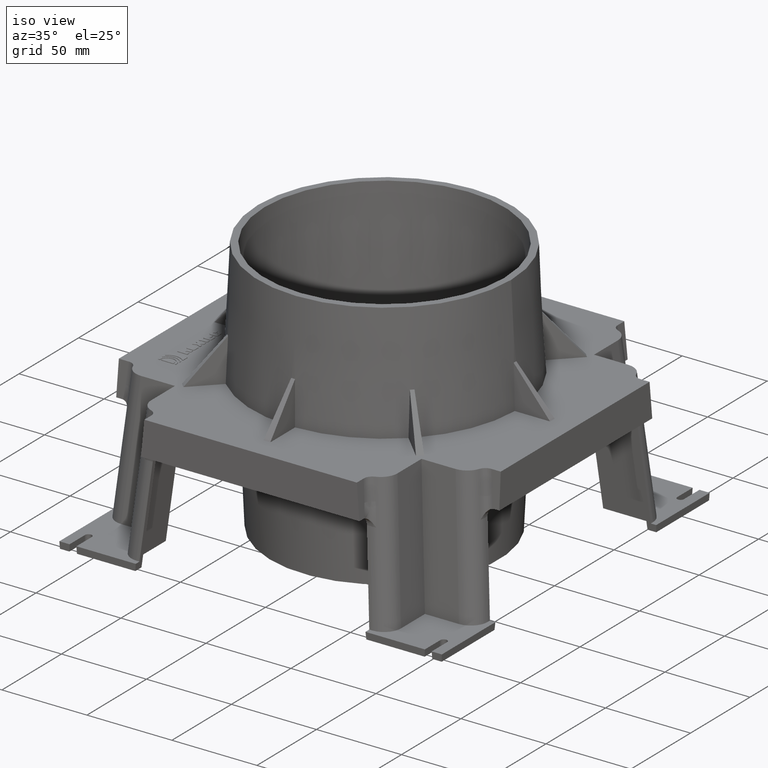
[diagram: clean part render]
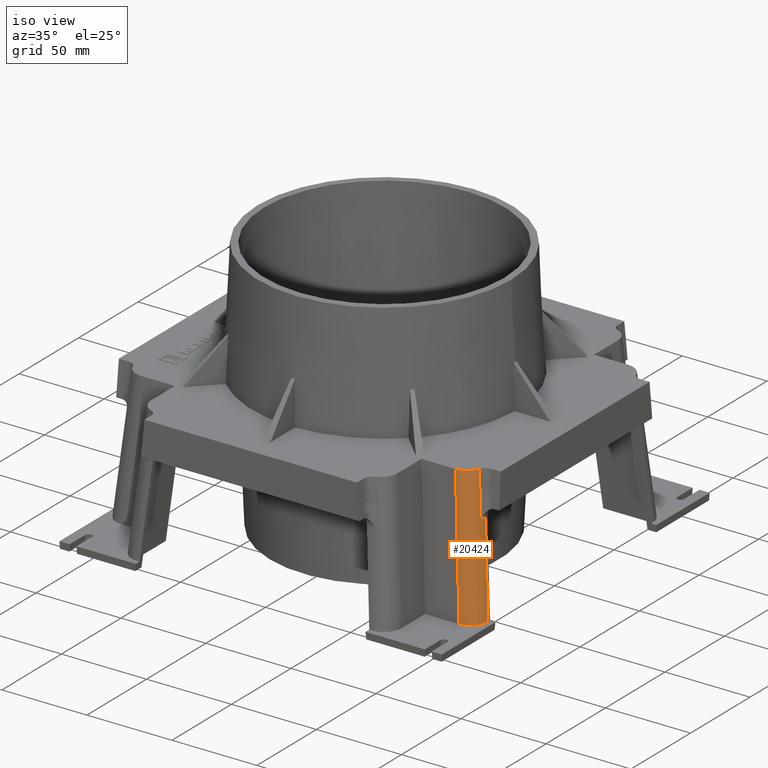
[diagram: same view with one face highlighted and labeled with its STEP entity id]
A machine part, iso view. The second image highlights one B-rep face of the part: STEP entity #20424.
In plain terms, the highlighted cylindrical surface (edge-blend (fillet) strip) has radius 10 mm, axis along (-0.0868, 0.0868, 0.9924).
Its self-contained STEP definition (entity closure, byte-faithful):
#97=CYLINDRICAL_SURFACE('',#21561,10.);
#320=ELLIPSE('',#20508,10.0762519445035,10.);
#363=ELLIPSE('',#20651,10.0762519445035,10.);
#408=ELLIPSE('',#20850,10.1707629905774,10.);
#1525=FACE_OUTER_BOUND('',#2576,.T.);
#2576=EDGE_LOOP('',(#17614,#17615,#17616,#17617,#17618,#17619));
#3406=LINE('',#29017,#5680);
#3412=LINE('',#29041,#5686);
#3423=LINE('',#29108,#5697);
#5680=VECTOR('',#22914,10.);
#5686=VECTOR('',#22934,10.);
#5697=VECTOR('',#22983,10.);
#7539=VERTEX_POINT('',#26341);
#7540=VERTEX_POINT('',#26343);
#8132=VERTEX_POINT('',#28360);
#8133=VERTEX_POINT('',#28362);
#8407=VERTEX_POINT('',#29040);
#8412=VERTEX_POINT('',#29106);
#9405=EDGE_CURVE('',#7540,#7539,#320,.T.);
#10059=EDGE_CURVE('',#8132,#8133,#363,.T.);
#10380=EDGE_CURVE('',#8132,#7540,#3406,.T.);
#10389=EDGE_CURVE('',#8407,#8133,#3412,.T.);
#10408=EDGE_CURVE('',#7539,#8412,#3423,.T.);
#10878=EDGE_CURVE('',#8407,#8412,#408,.T.);
#17614=ORIENTED_EDGE('',*,*,#9405,.T.);
#17615=ORIENTED_EDGE('',*,*,#10408,.T.);
#17616=ORIENTED_EDGE('',*,*,#10878,.F.);
#17617=ORIENTED_EDGE('',*,*,#10389,.T.);
#17618=ORIENTED_EDGE('',*,*,#10059,.F.);
#17619=ORIENTED_EDGE('',*,*,#10380,.T.);
#20424=ADVANCED_FACE('',(#1525),#97,.T.);
#20508=AXIS2_PLACEMENT_3D('',#26344,#21755,#21756);
#20651=AXIS2_PLACEMENT_3D('',#28363,#22490,#22491);
#20850=AXIS2_PLACEMENT_3D('',#30917,#23497,#23498);
#21561=AXIS2_PLACEMENT_3D('',#34225,#26016,#26017);
#21755=DIRECTION('center_axis',(0.,0.,1.));
#21756=DIRECTION('ref_axis',(0.707106781186548,-0.707106781186547,0.));
#22490=DIRECTION('center_axis',(0.,0.,1.));
#22491=DIRECTION('ref_axis',(0.707106781186548,-0.707106781186547,0.));
#22914=DIRECTION('',(0.0868265938642476,-0.0868265938642476,-0.992432509138967));
#22934=DIRECTION('',(-0.0868265938642477,0.0868265938642476,0.992432509138967));
#22983=DIRECTION('',(-0.0868265938642476,0.0868265938642476,0.992432509138967));
#23497=DIRECTION('center_axis',(0.0426844052627551,-0.0426844052627557,
0.998176378750133));
#23498=DIRECTION('ref_axis',(0.705817286234451,-0.705817286234451,-0.0603648648244182));
#26016=DIRECTION('center_axis',(-0.0868265938642476,0.0868265938642476,
0.992432509138967));
#26017=DIRECTION('ref_axis',(0.701755757082145,-0.701755757082143,0.12279134661748));
#26341=CARTESIAN_POINT('',(109.324115755022,-69.3621687741046,-78.));
#26343=CARTESIAN_POINT('',(99.3621687741046,-79.3241157550221,-78.));
#26344=CARTESIAN_POINT('Origin',(99.2859173795886,-69.2859173795886,-78.));
#28360=CARTESIAN_POINT('',(92.5380530190825,-72.5,0.));
#28362=CARTESIAN_POINT('',(101.942201574064,-65.8333333333333,-6.93889390390723E-17));
#28363=CARTESIAN_POINT('Origin',(92.4618016245665,-62.4618016245665,0.));
#29017=CARTESIAN_POINT('',(92.6131547168186,-72.5751016977361,-0.858416333149666));
#29040=CARTESIAN_POINT('',(104.177862602269,-68.0689943615378,-25.5537224836224));
#29041=CARTESIAN_POINT('',(101.996665786204,-65.8877975454727,-0.622528793381356));
#29106=CARTESIAN_POINT('',(104.725342285406,-64.7633953044887,-25.4357787137383));
#29108=CARTESIAN_POINT('',(102.575101697736,-62.6131547168186,-0.858416333149665));
#30917=CARTESIAN_POINT('Origin',(94.6490182127146,-64.6490182127146,-25.));
#34225=CARTESIAN_POINT('Origin',(92.6131547168186,-62.6131547168186,-1.72997376062625));